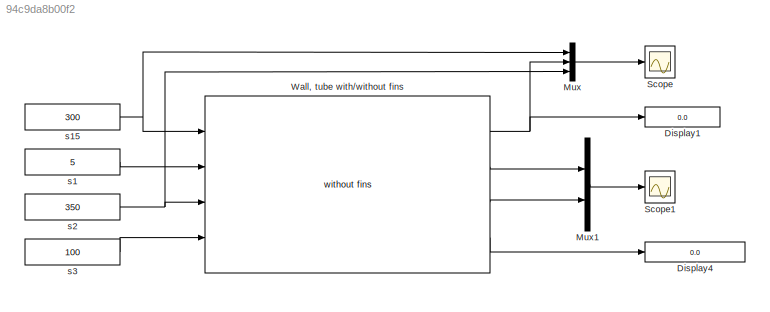
MODEL slx_94c9da8b00f2
KIND model
CONFIG AbsTol = auto
CONFIG EnableMultiTasking = off
CONFIG FixedStep = auto
CONFIG MaxStep = auto
CONFIG MinStep = auto
CONFIG RelTol = 1e-7
CONFIG SampleTimeConstraint = Unconstrained
CONFIG Solver = VariableStepAuto
CONFIG SolverName = VariableStepAuto
CONFIG StartTime = 0.0
CONFIG StopTime = 100
BLOCK [Display] Display1
  Decimation = 1
  Ports = [1]
BLOCK [Display] Display4
  Decimation = 1
  Format = long
  Ports = [1]
BLOCK [Mux] Mux
  DisplayOption = bar
  Inputs = 3
  Ports = [3, 1]
BLOCK [Mux] Mux1
  DisplayOption = bar
  Inputs = 2
  Ports = [2, 1]
BLOCK [Scope] Scope
  NumInputPorts = 1
  Ports = [1]
  ScopeSpecificationString = Simulink.scopes.TimeScopeBlockCfg('CurrentConfiguration', extmgr.ConfigurationSet(extmgr.Configuration('Core','General UI',true),extmgr.Configuration('Core','Source UI',true),extmgr.Configuration('Sources','WiredSimulink',true),extmgr.Configuration('Visuals','Time Domain',true,'SerializedDisplays',{struct('MinYLimReal','293.75','MaxYLimReal','356.25','YLabelReal','','MinYLimMag','293.75','MaxYLimM...<+1433ch>
BLOCK [Scope] Scope1
  NumInputPorts = 1
  Ports = [1]
  ScopeSpecificationString = Simulink.scopes.TimeScopeBlockCfg('CurrentConfiguration', extmgr.ConfigurationSet(extmgr.Configuration('Core','General UI',true),extmgr.Configuration('Core','Source UI',true),extmgr.Configuration('Sources','WiredSimulink',true,'DataLoggingVariableName','ScopeData1'),extmgr.Configuration('Visuals','Time Domain',true,'SerializedDisplays',{struct('MinYLimReal','470.82947','MaxYLimReal','818.60491','Y...<+1503ch>
BLOCK [Reference] Wall, tube with//without fins  REF=thermochemical/Walls/Wall, tube with//without fins  (lib defined in slx_f9e0643dc704)
  Ports = [4, 4]
  SourceBlock = thermochemical/Walls/Wall, tube with//without fins
  SourceProductName = @ Thermochemical
  SourceType = wall_finned_tube
BLOCK [Constant] s1
  Value = 5
BLOCK [Constant] s15
  Value = 300
BLOCK [Constant] s2
  Value = 350
BLOCK [Constant] s3
  Value = 100
LINE Mux1:1 -> Scope1:1
LINE Mux:1 -> Scope:1
NET Wall, tube with//without fins:1 -> Display1:1, Mux:2
LINE Wall, tube with//without fins:2 -> Mux1:1
LINE Wall, tube with//without fins:3 -> Mux1:2
LINE Wall, tube with//without fins:4 -> Display4:1
NET s15:1 -> Mux:1, Wall, tube with//without fins:1
LINE s1:1 -> Wall, tube with//without fins:2
NET s2:1 -> Mux:3, Wall, tube with//without fins:3
LINE s3:1 -> Wall, tube with//without fins:4
note: NET lines group one-source signal fan-out (src -> all destinations, sorted); 1:1 wires keep LINE
